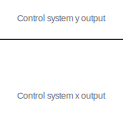
[diagram: root canvas - part 1/10, top right region]
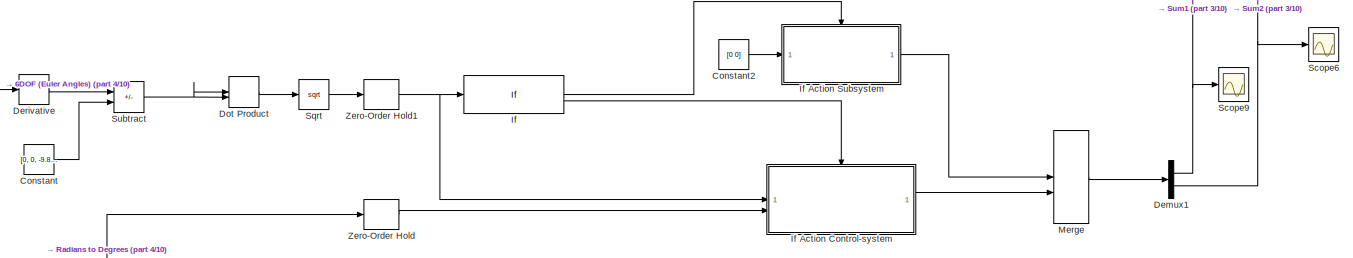
[diagram: root canvas - part 2/10, top center region]
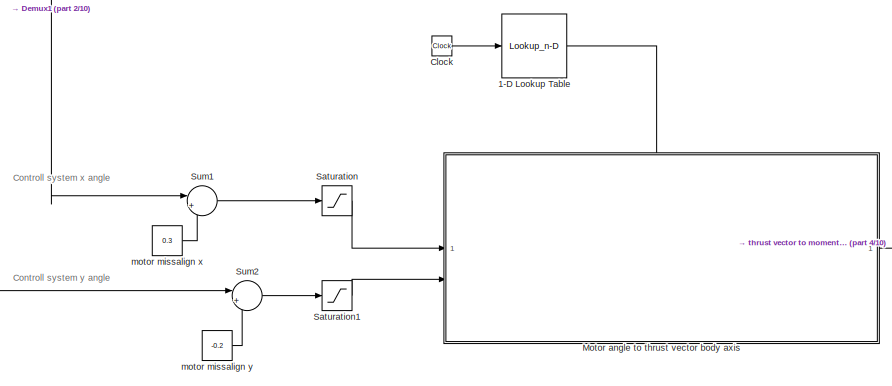
[diagram: root canvas - part 3/10, top left region]
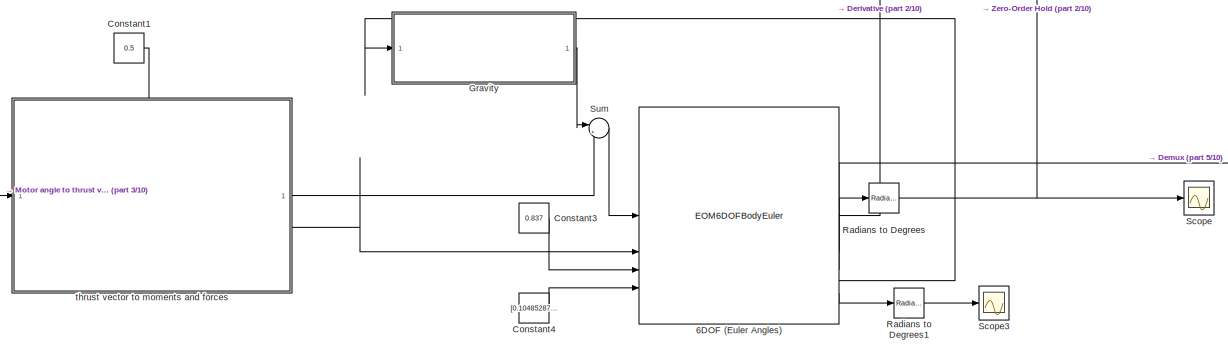
[diagram: root canvas - part 4/10, top center region]
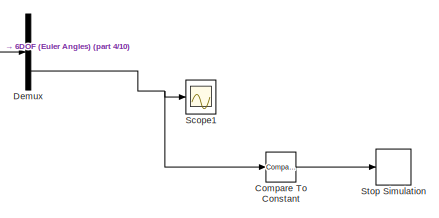
[diagram: root canvas - part 5/10, top center region]
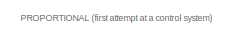
[diagram: root canvas - part 6/10, bottom center region]
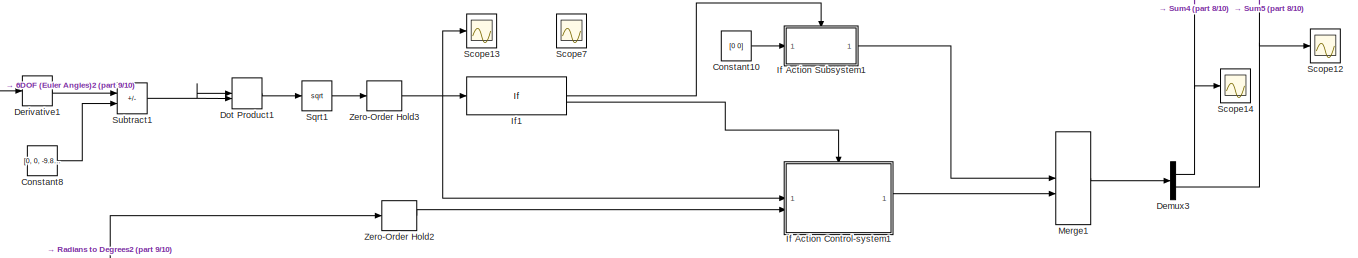
[diagram: root canvas - part 7/10, bottom right region]
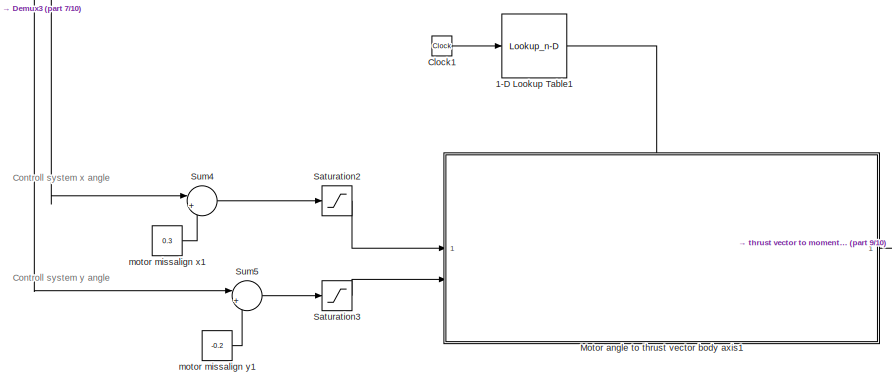
[diagram: root canvas - part 8/10, bottom left region]
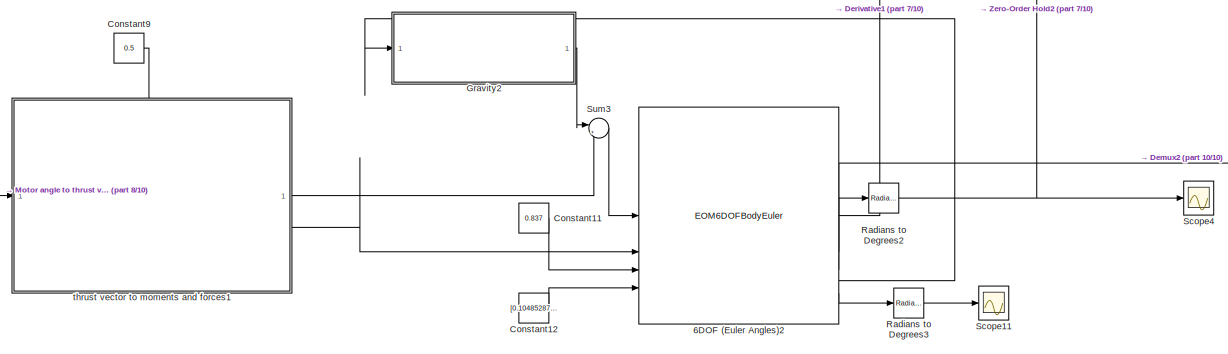
[diagram: root canvas - part 9/10, bottom center region]
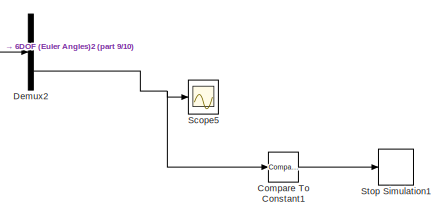
[diagram: root canvas - part 10/10, bottom right region]
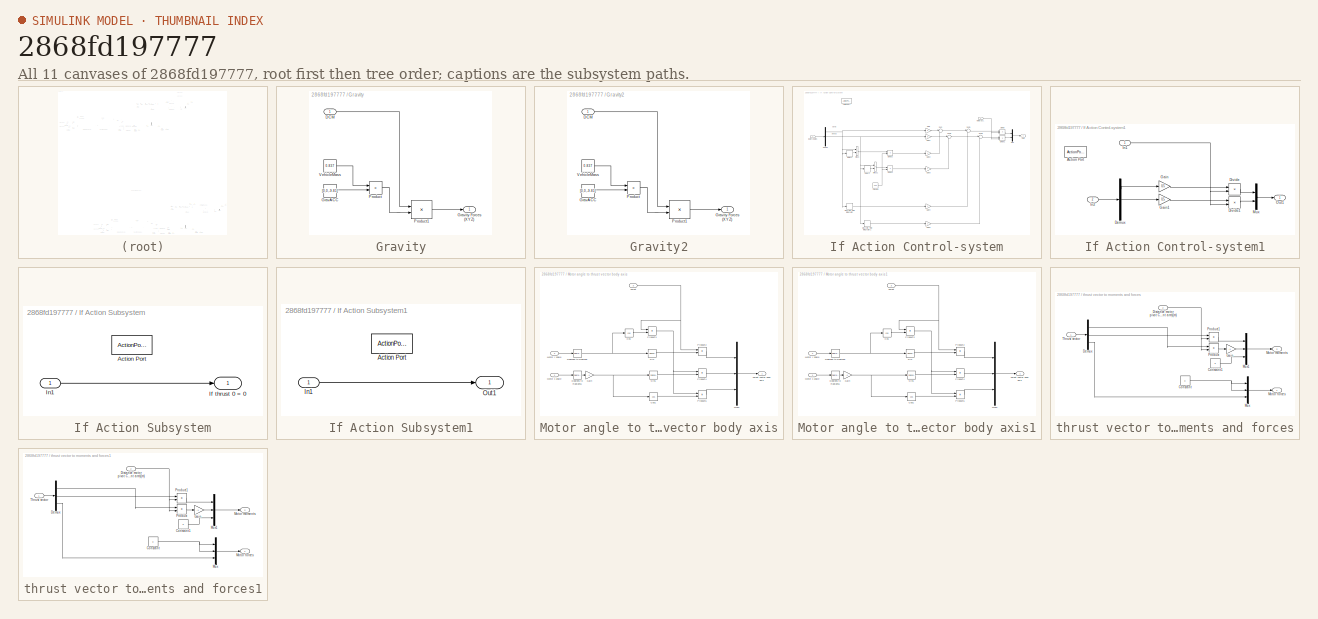
[diagram: thumbnail index - all 11 canvases of the model, root first then tree order]
MODEL slx_2868fd197777
KIND model
CONFIG AbsTol = auto
CONFIG EnableMultiTasking = off
CONFIG FixedStep = auto
CONFIG MaxStep = auto
CONFIG MinStep = auto
CONFIG RelTol = 1e-3
CONFIG SampleTimeConstraint = Unconstrained
CONFIG SolverName = VariableStepAuto
CONFIG StartTime = 0.0
CONFIG StopTime = 50
BLOCK [Lookup_n-D] 1-D Lookup Table
  BreakpointsForDimension1 = [0;0.014999999999999999;0.076999999999999999;0.20100000000000001;0.31;0.46400000000000002;0.57299999999999995;0.78900000000000003;1.0680000000000001;1.393;1.718;2.1659999999999999;2.677;3.3109999999999999;3.6829999999999998;3.7909999999999999;4.101;4.6580000000000004;5.1680000000000001;5.7249999999999996;6.1120000000000001;6.3289999999999997;6.4989999999999997;6.6849999999999996;6.7779999999999996...<+60ch>
  InputPortMap = u0
  InternalRulePriority = Speed
  NumberOfTableDimensions = 1
  RndMeth = Simplest
  Table = [0;28.219999999999999;26.082000000000001;24.934000000000001;22.806000000000001;20.183;17.885999999999999;16.074999999999999;13.946;12.630000000000001;11.154999999999999;9.8439999999999994;9.5150000000000006;9.1869999999999994;8.859;9.6790000000000003;9.6790000000000003;9.5150000000000006;9.0229999999999997;9.0229999999999997;8.5310000000000006;8.859;7.5460000000000003;5.742;4.9210000000000003;2.62...<+25ch>
BLOCK [Lookup_n-D] 1-D Lookup Table1
  BreakpointsForDimension1 = [0;0.014999999999999999;0.076999999999999999;0.20100000000000001;0.31;0.46400000000000002;0.57299999999999995;0.78900000000000003;1.0680000000000001;1.393;1.718;2.1659999999999999;2.677;3.3109999999999999;3.6829999999999998;3.7909999999999999;4.101;4.6580000000000004;5.1680000000000001;5.7249999999999996;6.1120000000000001;6.3289999999999997;6.4989999999999997;6.6849999999999996;6.7779999999999996...<+60ch>
  Commented = on
  InputPortMap = u0
  InternalRulePriority = Speed
  NumberOfTableDimensions = 1
  RndMeth = Simplest
  Table = [0;28.219999999999999;26.082000000000001;24.934000000000001;22.806000000000001;20.183;17.885999999999999;16.074999999999999;13.946;12.630000000000001;11.154999999999999;9.8439999999999994;9.5150000000000006;9.1869999999999994;8.859;9.6790000000000003;9.6790000000000003;9.5150000000000006;9.0229999999999997;9.0229999999999997;8.5310000000000006;8.859;7.5460000000000003;5.742;4.9210000000000003;2.62...<+25ch>
BLOCK [EOM6DOFBodyEuler] 6DOF (Euler Angles)
  mass_flag = on
  mtype = Custom Variable
  xme_0 = [0 0 0.1]
BLOCK [EOM6DOFBodyEuler] 6DOF (Euler Angles)2
  Commented = on
  mass_flag = on
  mtype = Custom Variable
  xme_0 = [0 0 0.1]
BLOCK [Clock] Clock
BLOCK [Clock] Clock1
  Commented = on
BLOCK [Reference] Compare To Constant  REF=simulink/Logic and Bit
Operations/Compare
To Constant
  SourceBlock = simulink/Logic and Bit\nOperations/Compare\nTo Constant
  SourceType = Compare To Constant
BLOCK [Reference] Compare To Constant1  REF=simulink/Logic and Bit
Operations/Compare
To Constant
  Commented = on
  SourceBlock = simulink/Logic and Bit\nOperations/Compare\nTo Constant
  SourceType = Compare To Constant
BLOCK [Constant] Constant
  Value = [0, 0, -9.81]
BLOCK [Constant] Constant1
  Value = 0.5
BLOCK [Constant] Constant10
  Commented = on
  Value = [0 0]
BLOCK [Constant] Constant11
  Commented = on
  Value = 0.837
BLOCK [Constant] Constant12
  Commented = on
  Value = [0.10485287325,0,0;0,0.10485287325,0;0,0,0.0004557465]
  VectorParams1D = off
BLOCK [Constant] Constant2
  Value = [0 0]
BLOCK [Constant] Constant3
  Value = 0.837
BLOCK [Constant] Constant4
  Value = [0.10485287325,0,0;0,0.10485287325,0;0,0,0.0004557465]
  VectorParams1D = off
BLOCK [Constant] Constant8
  Commented = on
  Value = [0, 0, -9.81]
BLOCK [Constant] Constant9
  Commented = on
  Value = 0.5
BLOCK [Demux] Demux
  Outputs = 3
BLOCK [Demux] Demux1
  Outputs = 2
BLOCK [Demux] Demux2
  Commented = on
  Outputs = 3
BLOCK [Demux] Demux3
  Commented = on
  Outputs = 2
BLOCK [Derivative] Derivative
BLOCK [Derivative] Derivative1
  Commented = on
BLOCK [DotProduct] Dot Product
  OutDataTypeStr = Inherit: Inherit via internal rule
BLOCK [DotProduct] Dot Product1
  Commented = on
  OutDataTypeStr = Inherit: Inherit via internal rule
BLOCK [SubSystem] Gravity
BLOCK [Inport] Gravity/DCM
BLOCK [Constant] Gravity/GravACC
  Value = [0,0,-9.81]
BLOCK [Outport] Gravity/Gravity Forces (XYZ)
BLOCK [Product] Gravity/Product
BLOCK [Product] Gravity/Product1
  Multiplication = Matrix(*)
BLOCK [Constant] Gravity/VehicleMass
  Value = 0.837
BLOCK [SubSystem] Gravity2
  Commented = on
BLOCK [Inport] Gravity2/DCM
BLOCK [Constant] Gravity2/GravACC
  Value = [0,0,-9.81]
BLOCK [Outport] Gravity2/Gravity Forces (XYZ)
BLOCK [Product] Gravity2/Product
BLOCK [Product] Gravity2/Product1
  Multiplication = Matrix(*)
BLOCK [Constant] Gravity2/VehicleMass
  Value = 0.837
BLOCK [If] If
  IfExpression = u1 == 0
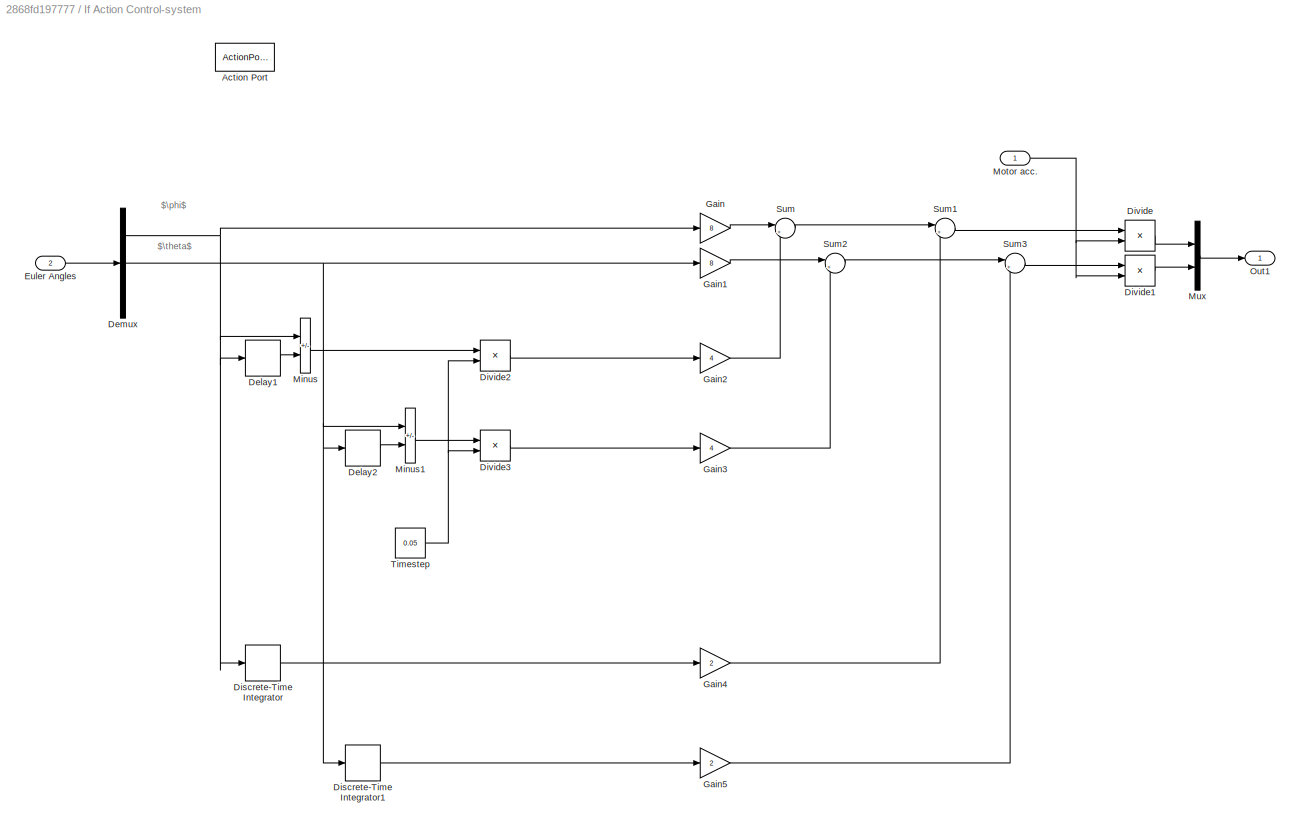
BLOCK [SubSystem] If Action Control-system
  TreatAsAtomicUnit = on
BLOCK [ActionPort] If Action Control-system/Action Port
  ActionPortLabel = else
BLOCK [Delay] If Action Control-system/Delay1
  DelayLength = 1
  InputPortMap = u0
  InputProcessing = Columns as channels (frame based)
BLOCK [Delay] If Action Control-system/Delay2
  DelayLength = 1
  InputPortMap = u0
  InputProcessing = Columns as channels (frame based)
BLOCK [Demux] If Action Control-system/Demux
  Outputs = 3
BLOCK [DiscreteIntegrator] If Action Control-system/Discrete-Time Integrator
  ICPrevOutput = DiscIntNeverNeededParam
  ICPrevScaledInput = DiscIntNeverNeededParam
  InitialConditionSetting = Auto
  SampleTime = -1
BLOCK [DiscreteIntegrator] If Action Control-system/Discrete-Time Integrator1
  ICPrevOutput = DiscIntNeverNeededParam
  ICPrevScaledInput = DiscIntNeverNeededParam
  InitialConditionSetting = Auto
  SampleTime = -1
BLOCK [Product] If Action Control-system/Divide
  Inputs = */
BLOCK [Product] If Action Control-system/Divide1
  Inputs = */
BLOCK [Product] If Action Control-system/Divide2
  Inputs = */
BLOCK [Product] If Action Control-system/Divide3
  Inputs = */
BLOCK [Inport] If Action Control-system/Euler Angles
  Port = 2
BLOCK [Gain] If Action Control-system/Gain
  Gain = 8
BLOCK [Gain] If Action Control-system/Gain1
  Gain = 8
BLOCK [Gain] If Action Control-system/Gain2
  Gain = 4
BLOCK [Gain] If Action Control-system/Gain3
  Gain = 4
BLOCK [Gain] If Action Control-system/Gain4
  Gain = 2
BLOCK [Gain] If Action Control-system/Gain5
  Gain = 2
BLOCK [Sum] If Action Control-system/Minus
  IconShape = rectangular
  Inputs = +-
BLOCK [Sum] If Action Control-system/Minus1
  IconShape = rectangular
  Inputs = +-
BLOCK [Inport] If Action Control-system/Motor acc.
BLOCK [Mux] If Action Control-system/Mux
  DisplayOption = bar
  Inputs = 2
BLOCK [Outport] If Action Control-system/Out1
BLOCK [Sum] If Action Control-system/Sum
  Inputs = |++
BLOCK [Sum] If Action Control-system/Sum1
  Inputs = |++
BLOCK [Sum] If Action Control-system/Sum2
  Inputs = |++
BLOCK [Sum] If Action Control-system/Sum3
  Inputs = |++
BLOCK [Constant] If Action Control-system/Timestep
  Value = 0.05
BLOCK [SubSystem] If Action Control-system1
  Commented = on
  TreatAsAtomicUnit = on
BLOCK [ActionPort] If Action Control-system1/Action Port
  ActionPortLabel = else
BLOCK [Demux] If Action Control-system1/Demux
  Outputs = 3
BLOCK [Product] If Action Control-system1/Divide
  Inputs = */
BLOCK [Product] If Action Control-system1/Divide1
  Inputs = */
BLOCK [Gain] If Action Control-system1/Gain
  Gain = 0.5
BLOCK [Gain] If Action Control-system1/Gain1
  Gain = 0.5
BLOCK [Inport] If Action Control-system1/In1
BLOCK [Inport] If Action Control-system1/In2
  Port = 2
BLOCK [Mux] If Action Control-system1/Mux
  DisplayOption = bar
  Inputs = 2
BLOCK [Outport] If Action Control-system1/Out1
BLOCK [SubSystem] If Action Subsystem
  TreatAsAtomicUnit = on
BLOCK [ActionPort] If Action Subsystem/Action Port
  ActionPortLabel = if(u1 == 0)
BLOCK [Outport] If Action Subsystem/If thrust 0 = 0
BLOCK [Inport] If Action Subsystem/In1
BLOCK [SubSystem] If Action Subsystem1
  Commented = on
  TreatAsAtomicUnit = on
BLOCK [ActionPort] If Action Subsystem1/Action Port
  ActionPortLabel = if(u1 == 0)
BLOCK [Inport] If Action Subsystem1/In1
BLOCK [Outport] If Action Subsystem1/Out1
BLOCK [If] If1
  Commented = on
  IfExpression = u1 == 0
BLOCK [Merge] Merge
  InitialOutput = [0  0]
BLOCK [Merge] Merge1
  Commented = on
  InitialOutput = [0  0]
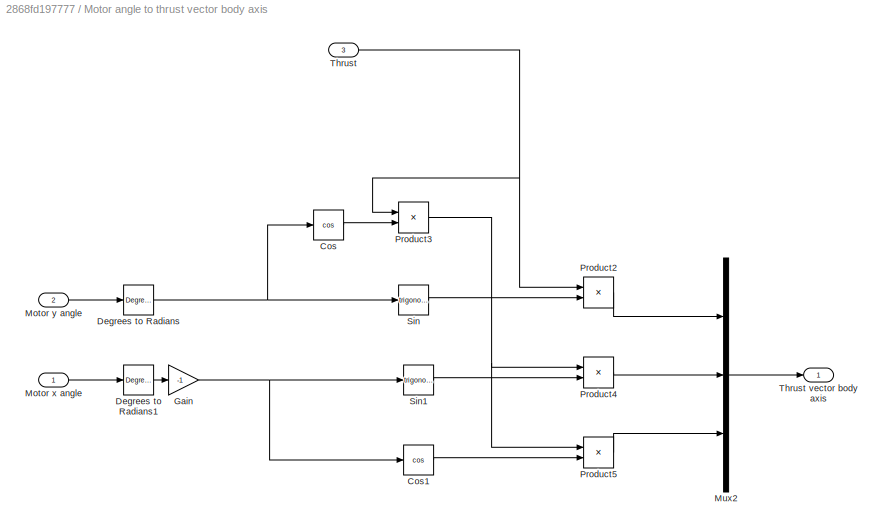
BLOCK [SubSystem] Motor angle to thrust vector body axis
  PortSchema = {"entries":[{"content":{"sides":[{"content":{"connectorIds":["In1","In2"]},"type":"ConnectorPlacement.EquallySpacedRectSide","uuid":"4b503973-8707-4c0f-888a-19da73d3d266"},{"content":{"connectorIds":["Out1"],"side":"RIGHT"},"type":"ConnectorPlacement.EquallySpacedRectSide","uuid":"0e35582e-8d4d-4e1d-9caa-676f92065a2c"},{"content":{"connectorIds":["In3"],"side":"TOP"},"type":"ConnectorPlacement.Equ...<+251ch>
BLOCK [Trigonometry] Motor angle to thrust vector body axis/Cos
  Operator = cos
BLOCK [Trigonometry] Motor angle to thrust vector body axis/Cos1
  Operator = cos
BLOCK [Reference] Motor angle to thrust vector body axis/Degrees to Radians  REF=simulink_extras/Transformations/Degrees to
Radians
  SourceBlock = simulink_extras/Transformations/Degrees to\nRadians
  SourceType = DegreesToRadians
BLOCK [Reference] Motor angle to thrust vector body axis/Degrees to Radians1  REF=simulink_extras/Transformations/Degrees to
Radians
  SourceBlock = simulink_extras/Transformations/Degrees to\nRadians
  SourceType = DegreesToRadians
BLOCK [Gain] Motor angle to thrust vector body axis/Gain
  Gain = -1
BLOCK [Inport] Motor angle to thrust vector body axis/Motor x angle 
BLOCK [Inport] Motor angle to thrust vector body axis/Motor y angle
  Port = 2
BLOCK [Mux] Motor angle to thrust vector body axis/Mux2
  DisplayOption = bar
  Inputs = 3
BLOCK [Product] Motor angle to thrust vector body axis/Product2
BLOCK [Product] Motor angle to thrust vector body axis/Product3
BLOCK [Product] Motor angle to thrust vector body axis/Product4
BLOCK [Product] Motor angle to thrust vector body axis/Product5
BLOCK [Trigonometry] Motor angle to thrust vector body axis/Sin
BLOCK [Trigonometry] Motor angle to thrust vector body axis/Sin1
BLOCK [Inport] Motor angle to thrust vector body axis/Thrust
  Port = 3
BLOCK [Outport] Motor angle to thrust vector body axis/Thrust vector body axis
BLOCK [SubSystem] Motor angle to thrust vector body axis1
  Commented = on
  PortSchema = {"entries":[{"content":{"sides":[{"content":{"connectorIds":["In1","In2"]},"type":"ConnectorPlacement.EquallySpacedRectSide","uuid":"4b503973-8707-4c0f-888a-19da73d3d266"},{"content":{"connectorIds":["Out1"],"side":"RIGHT"},"type":"ConnectorPlacement.EquallySpacedRectSide","uuid":"0e35582e-8d4d-4e1d-9caa-676f92065a2c"},{"content":{"connectorIds":["In3"],"side":"TOP"},"type":"ConnectorPlacement.Equ...<+251ch>
BLOCK [Trigonometry] Motor angle to thrust vector body axis1/Cos
  Operator = cos
BLOCK [Trigonometry] Motor angle to thrust vector body axis1/Cos1
  Operator = cos
BLOCK [Reference] Motor angle to thrust vector body axis1/Degrees to Radians  REF=simulink_extras/Transformations/Degrees to
Radians
  SourceBlock = simulink_extras/Transformations/Degrees to\nRadians
  SourceType = DegreesToRadians
BLOCK [Reference] Motor angle to thrust vector body axis1/Degrees to Radians1  REF=simulink_extras/Transformations/Degrees to
Radians
  SourceBlock = simulink_extras/Transformations/Degrees to\nRadians
  SourceType = DegreesToRadians
BLOCK [Gain] Motor angle to thrust vector body axis1/Gain
  Gain = -1
BLOCK [Inport] Motor angle to thrust vector body axis1/Motor x angle 
BLOCK [Inport] Motor angle to thrust vector body axis1/Motor y angle
  Port = 2
BLOCK [Mux] Motor angle to thrust vector body axis1/Mux2
  DisplayOption = bar
  Inputs = 3
BLOCK [Product] Motor angle to thrust vector body axis1/Product2
BLOCK [Product] Motor angle to thrust vector body axis1/Product3
BLOCK [Product] Motor angle to thrust vector body axis1/Product4
BLOCK [Product] Motor angle to thrust vector body axis1/Product5
BLOCK [Trigonometry] Motor angle to thrust vector body axis1/Sin
BLOCK [Trigonometry] Motor angle to thrust vector body axis1/Sin1
BLOCK [Inport] Motor angle to thrust vector body axis1/Thrust
  Port = 3
BLOCK [Outport] Motor angle to thrust vector body axis1/Thrust vector body axis
BLOCK [Reference] Radians to Degrees  REF=simulink_extras/Transformations/Radians
to Degrees
  SourceBlock = simulink_extras/Transformations/Radians\nto Degrees
  SourceType = RadiansToDegrees
BLOCK [Reference] Radians to Degrees1  REF=simulink_extras/Transformations/Radians
to Degrees
  SourceBlock = simulink_extras/Transformations/Radians\nto Degrees
  SourceType = RadiansToDegrees
BLOCK [Reference] Radians to Degrees2  REF=simulink_extras/Transformations/Radians
to Degrees
  Commented = on
  SourceBlock = simulink_extras/Transformations/Radians\nto Degrees
  SourceType = RadiansToDegrees
BLOCK [Reference] Radians to Degrees3  REF=simulink_extras/Transformations/Radians
to Degrees
  Commented = on
  SourceBlock = simulink_extras/Transformations/Radians\nto Degrees
  SourceType = RadiansToDegrees
BLOCK [Saturate] Saturation
  LowerLimit = -5
  UpperLimit = 5
BLOCK [Saturate] Saturation1
  LowerLimit = -5
  UpperLimit = 5
BLOCK [Saturate] Saturation2
  Commented = on
  LowerLimit = -5
  UpperLimit = 5
BLOCK [Saturate] Saturation3
  Commented = on
  LowerLimit = -5
  UpperLimit = 5
BLOCK [Scope] Scope
  ActiveDisplayYMaximum = 1.3166208055928255
  ActiveDisplayYMinimum = -0.95333238471371728
  Floating = off
  GraphicalSettings = {"AxesScalingProperties":{"AlignXAxis":"Center","AlignYAxis":"Center","AutoScaleXAxisLimits":false,"AxesScaling":"Manual","AxesScalingNumUpdates":10,"ExpandOnly":true,"ScaleAxesLimitsAtStop":false,"XAxisDataRange":100,"YAxisDataRange":80},"Cursors":{"CursorChannels":["auto","auto"],"Enabled":true,"Horizontal":true,"LinkToWaveform":true,"LockSpacing":false,"ShowMeasurement":true,"ShowPanel":false,"...<+2564ch>
  MultipleDisplayCache = [{"MaxYLimMag":1.3166208055928255,"MaxYLimReal":1.3166208055928255,"MinYLimMag":0,"MinYLimReal":-0.95333238471371728,"PlotAsMagnitudePhase":false,"ShowGrid":true,"ShowLegend":false,"Title":"%<SignalLabel>","YLabel":""}]
  NumInputPorts = 1
  ScopeFrameLocation = window
  WasSavedAsWebScope = on
  WindowPosition = [228.000000,36.000000,1006.000000,843.000000,]
BLOCK [Scope] Scope1
  ActiveDisplayYMaximum = 177.26177365271346
  ActiveDisplayYMinimum = -25.220477284135235
  DataLoggingVariableName = ScopeData1
  Floating = off
  GraphicalSettings = {"Style":{"BackgroundColor":[0.12941176470588237,0.12941176470588237,0.12941176470588237],"AxesColor":[0.07058823529411765,0.07058823529411765,0.07058823529411765],"LabelsColor":[0.8509803921568627,0.8509803921568627,0.8509803921568627],"PreserveColors":false,"Visible":[true,true,true,true,true,true,true],"LineStyle":["-","-","-","-","-","-","-"],"LineWidth":[1.5,1.5,1.5,1.5,1.5,1.5,1.5],"BarWidth...<+2895ch>
  MultipleDisplayCache = [{"MaxYLimMag":182.2340258431702,"MaxYLimReal":177.26177365271346,"MinYLimMag":0,"MinYLimReal":-25.220477284135235,"PlotAsMagnitudePhase":false,"ShowGrid":true,"ShowLegend":false,"Title":"%<SignalLabel>","YLabel":""}]
  NumInputPorts = 1
  ScopeFrameLocation = window
  Visible = on
  WasSavedAsWebScope = on
  WindowPosition = [341.000000,40.000000,780.000000,835.000000,]
BLOCK [Scope] Scope11
  ActiveDisplayYMaximum = 8.6437171838582287
  ActiveDisplayYMinimum = -11.792882787629186
  Commented = on
  DataLoggingVariableName = ScopeData4
  Floating = off
  GraphicalSettings = {"Style":{"BackgroundColor":[0.12941176470588237,0.12941176470588237,0.12941176470588237],"AxesColor":[0.07058823529411765,0.07058823529411765,0.07058823529411765],"LabelsColor":[0.8509803921568627,0.8509803921568627,0.8509803921568627],"PreserveColors":false,"Visible":[true,true,true],"LineStyle":["-","-","-"],"LineWidth":[1.5,1.5,1.5],"BarWidth":[0.9,0.9,0.9],"LineColor":["auto","auto","auto"],"...<+2655ch>
  MultipleDisplayCache = [{"MaxYLimMag":5.8138597883007268,"MaxYLimReal":8.6437171838582287,"MinYLimMag":0,"MinYLimReal":-11.792882787629186,"PlotAsMagnitudePhase":false,"ShowGrid":true,"ShowLegend":false,"Title":"%<SignalLabel>","YLabel":""}]
  NumInputPorts = 1
  ScopeFrameLocation = window
  WasSavedAsWebScope = on
  WindowPosition = [0.000000,36.000000,1463.000000,843.000000,]
BLOCK [Scope] Scope12
  ActiveDisplayYMaximum = 12.983065605518574
  ActiveDisplayYMinimum = -19.172442371926476
  Commented = on
  ContainerLayout = {"WindowBounds":[91.428571428571331,73.14285714285711,1280,768]}
  DataLoggingVariableName = ScopeData5
  Floating = off
  GraphicalSettings = {"Style":{"BackgroundColor":[0.12941176470588237,0.12941176470588237,0.12941176470588237],"AxesColor":[0.07058823529411765,0.07058823529411765,0.07058823529411765],"LabelsColor":[0.8509803921568627,0.8509803921568627,0.8509803921568627],"PreserveColors":false,"Visible":[true,true,true,true,true,true,true],"LineStyle":["-","-","-","-","-","-","-"],"LineWidth":[1.5,1.5,1.5,1.5,1.5,1.5,1.5],"BarWidth...<+2874ch>
  MultipleDisplayCache = [{"MaxYLimMag":19.172442371926476,"MaxYLimReal":12.983065605518574,"MinYLimMag":0,"MinYLimReal":-19.172442371926476,"PlotAsMagnitudePhase":false,"ShowGrid":true,"ShowLegend":false,"Title":"%<SignalLabel>","YLabel":""}]
  NumInputPorts = 1
  ScopeFrameLocation = container
  WasSavedAsWebScope = on
  WindowPosition = [91.000000,73.000000,1280.000000,768.000000,]
BLOCK [Scope] Scope13
  ActiveDisplayYMaximum = 23.965563237830779
  ActiveDisplayYMinimum = -5.6698001376617562
  Commented = on
  DataLoggingVariableName = ScopeData6
  Floating = off
  GraphicalSettings = {"Style":{"BackgroundColor":[0.12941176470588237,0.12941176470588237,0.12941176470588237],"AxesColor":[0.07058823529411765,0.07058823529411765,0.07058823529411765],"LabelsColor":[0.8509803921568627,0.8509803921568627,0.8509803921568627],"PreserveColors":false,"Visible":[true],"LineStyle":["-"],"LineWidth":[1.5],"BarWidth":[0.9],"LineColor":["auto"],"LineFaceAlpha":[1],"LineEdgeAlpha":[1],"Marker":...<+2316ch>
  MultipleDisplayCache = [{"MaxYLimMag":36.83043138480658,"MaxYLimReal":23.965563237830779,"MinYLimMag":0,"MinYLimReal":-5.6698001376617562,"PlotAsMagnitudePhase":false,"ShowGrid":true,"ShowLegend":false,"Title":"%<SignalLabel>","YLabel":""}]
  NumInputPorts = 1
  ScopeFrameLocation = window
  WasSavedAsWebScope = on
  WindowPosition = [764.000000,130.000000,560.000000,420.000000,]
BLOCK [Scope] Scope14
  ActiveDisplayYMaximum = 0.23196190946596834
  ActiveDisplayYMinimum = -0.98756090268573959
  Commented = on
  DataLoggingVariableName = ScopeData8
  Floating = off
  GraphicalSettings = {"AxesScalingProperties":{"AlignXAxis":"Center","AlignYAxis":"Center","AutoScaleXAxisLimits":false,"AxesScaling":"Manual","AxesScalingNumUpdates":10,"ExpandOnly":true,"ScaleAxesLimitsAtStop":false,"XAxisDataRange":100,"YAxisDataRange":80},"Cursors":{"CursorChannels":["auto","auto"],"Enabled":true,"Horizontal":true,"LinkToWaveform":true,"LockSpacing":false,"ShowMeasurement":true,"ShowPanel":false,"...<+2308ch>
  MultipleDisplayCache = [{"MaxYLimMag":0.98756090268573959,"MaxYLimReal":0.23196190946596834,"MinYLimMag":0,"MinYLimReal":-0.98756090268573959,"PlotAsMagnitudePhase":false,"ShowGrid":true,"ShowLegend":false,"Title":"%<SignalLabel>","YLabel":""}]
  NumInputPorts = 1
  ScopeFrameLocation = window
  WasSavedAsWebScope = on
  WindowPosition = [1.000000,49.000000,1463.000000,843.000000,]
BLOCK [Scope] Scope3
  ActiveDisplayYMaximum = 8.6437171838582287
  ActiveDisplayYMinimum = -11.792882787629186
  DataLoggingVariableName = ScopeData3
  Floating = off
  GraphicalSettings = {"Style":{"BackgroundColor":[0.12941176470588237,0.12941176470588237,0.12941176470588237],"AxesColor":[0.07058823529411765,0.07058823529411765,0.07058823529411765],"LabelsColor":[0.8509803921568627,0.8509803921568627,0.8509803921568627],"PreserveColors":false,"Visible":[true,true,true],"LineStyle":["-","-","-"],"LineWidth":[1.5,1.5,1.5],"BarWidth":[0.9,0.9,0.9],"LineColor":["auto","auto","auto"],"...<+2655ch>
  MultipleDisplayCache = [{"MaxYLimMag":5.8138597883007268,"MaxYLimReal":8.6437171838582287,"MinYLimMag":0,"MinYLimReal":-11.792882787629186,"PlotAsMagnitudePhase":false,"ShowGrid":true,"ShowLegend":false,"Title":"%<SignalLabel>","YLabel":""}]
  NumInputPorts = 1
  ScopeFrameLocation = window
  WasSavedAsWebScope = on
  WindowPosition = [0.000000,36.000000,1463.000000,843.000000,]
BLOCK [Scope] Scope4
  ActiveDisplayYMaximum = 21.82157133014633
  ActiveDisplayYMinimum = -31.544686076176852
  Commented = on
  DataLoggingVariableName = ScopeData12
  Floating = off
  GraphicalSettings = {"Style":{"BackgroundColor":[0.12941176470588237,0.12941176470588237,0.12941176470588237],"AxesColor":[0.07058823529411765,0.07058823529411765,0.07058823529411765],"LabelsColor":[0.8509803921568627,0.8509803921568627,0.8509803921568627],"PreserveColors":false,"Visible":[true,true,true],"LineStyle":["-","-","-"],"LineWidth":[1.5,1.5,1.5],"BarWidth":[0.9,0.9,0.9],"LineColor":["auto","auto","auto"],"...<+2984ch>
  MultipleDisplayCache = [{"MaxYLimMag":31.544686076176852,"MaxYLimReal":21.82157133014633,"MinYLimMag":0,"MinYLimReal":-31.544686076176852,"PlotAsMagnitudePhase":false,"ShowGrid":true,"ShowLegend":false,"Title":"%<SignalLabel>","YLabel":""}]
  NumInputPorts = 1
  ScopeFrameLocation = window
  Visible = on
  WasSavedAsWebScope = on
  WindowPosition = [297.000000,39.000000,807.000000,843.000000,]
BLOCK [Scope] Scope5
  ActiveDisplayYMaximum = 156.85705293055312
  ActiveDisplayYMinimum = -17.3175558325307
  Commented = on
  DataLoggingVariableName = ScopeData13
  Floating = off
  GraphicalSettings = {"AxesScalingProperties":{"AlignXAxis":"Center","AlignYAxis":"Center","AutoScaleXAxisLimits":false,"AxesScaling":"Manual","AxesScalingNumUpdates":10,"ExpandOnly":true,"ScaleAxesLimitsAtStop":false,"XAxisDataRange":100,"YAxisDataRange":80},"Cursors":{"CursorChannels":["auto","auto"],"Enabled":false,"Horizontal":true,"LinkToWaveform":true,"LockSpacing":false,"ShowMeasurement":true,"ShowPanel":false,...<+2649ch>
  MultipleDisplayCache = [{"MaxYLimMag":156.85705293055312,"MaxYLimReal":156.85705293055312,"MinYLimMag":0,"MinYLimReal":-17.3175558325307,"PlotAsMagnitudePhase":false,"ShowGrid":true,"ShowLegend":false,"Title":"%<SignalLabel>","YLabel":""}]
  NumInputPorts = 1
  ScopeFrameLocation = window
  Visible = on
  WasSavedAsWebScope = on
  WindowPosition = [367.000000,19.000000,818.000000,843.000000,]
BLOCK [Scope] Scope6
  ActiveDisplayYMaximum = 12.983065605518574
  ActiveDisplayYMinimum = -19.172442371926476
  ContainerLayout = {"WindowBounds":[91.428571428571331,73.14285714285711,1280,768]}
  DataLoggingVariableName = ScopeData7
  Floating = off
  GraphicalSettings = {"Style":{"BackgroundColor":[0.12941176470588237,0.12941176470588237,0.12941176470588237],"AxesColor":[0.07058823529411765,0.07058823529411765,0.07058823529411765],"LabelsColor":[0.8509803921568627,0.8509803921568627,0.8509803921568627],"PreserveColors":false,"Visible":[true,true,true,true,true,true,true],"LineStyle":["-","-","-","-","-","-","-"],"LineWidth":[1.5,1.5,1.5,1.5,1.5,1.5,1.5],"BarWidth...<+2874ch>
  MultipleDisplayCache = [{"MaxYLimMag":19.172442371926476,"MaxYLimReal":12.983065605518574,"MinYLimMag":0,"MinYLimReal":-19.172442371926476,"PlotAsMagnitudePhase":false,"ShowGrid":true,"ShowLegend":false,"Title":"%<SignalLabel>","YLabel":""}]
  NumInputPorts = 1
  ScopeFrameLocation = container
  Visible = on
  WasSavedAsWebScope = on
  WindowPosition = [91.000000,73.000000,1280.000000,768.000000,]
BLOCK [Scope] Scope7
  ActiveDisplayYMaximum = 9.2049276824252656E+12
  ActiveDisplayYMinimum = -1.2750777308455941E+13
  Commented = on
  DataLoggingVariableName = ScopeData14
  Floating = off
  GraphicalSettings = {"AxesScalingProperties":{"AlignXAxis":"Center","AlignYAxis":"Center","AutoScaleXAxisLimits":false,"AxesScaling":"Manual","AxesScalingNumUpdates":10,"ExpandOnly":true,"ScaleAxesLimitsAtStop":false,"XAxisDataRange":100,"YAxisDataRange":80},"Cursors":{"CursorChannels":["auto","auto"],"Enabled":true,"Horizontal":true,"LinkToWaveform":true,"LockSpacing":false,"ShowMeasurement":true,"ShowPanel":false,"...<+2343ch>
  MultipleDisplayCache = [{"MaxYLimMag":8.0680672488989541E+12,"MaxYLimReal":9.2049276824252656E+12,"MinYLimMag":0,"MinYLimReal":-1.2750777308455941E+13,"PlotAsMagnitudePhase":false,"ShowGrid":true,"ShowLegend":false,"Title":"%<SignalLabel>","YLabel":""}]
  NumInputPorts = 1
  ScopeFrameLocation = window
  WasSavedAsWebScope = on
  WindowPosition = [764.000000,130.000000,560.000000,420.000000,]
BLOCK [Scope] Scope9
  ActiveDisplayYMaximum = 0.23196190946596834
  ActiveDisplayYMinimum = -0.98756090268573959
  DataLoggingVariableName = ScopeData10
  Floating = off
  GraphicalSettings = {"AxesScalingProperties":{"AlignXAxis":"Center","AlignYAxis":"Center","AutoScaleXAxisLimits":false,"AxesScaling":"Manual","AxesScalingNumUpdates":10,"ExpandOnly":true,"ScaleAxesLimitsAtStop":false,"XAxisDataRange":100,"YAxisDataRange":80},"Cursors":{"CursorChannels":["auto","auto"],"Enabled":true,"Horizontal":true,"LinkToWaveform":true,"LockSpacing":false,"ShowMeasurement":true,"ShowPanel":false,"...<+2308ch>
  MultipleDisplayCache = [{"MaxYLimMag":0.98756090268573959,"MaxYLimReal":0.23196190946596834,"MinYLimMag":0,"MinYLimReal":-0.98756090268573959,"PlotAsMagnitudePhase":false,"ShowGrid":true,"ShowLegend":false,"Title":"%<SignalLabel>","YLabel":""}]
  NumInputPorts = 1
  ScopeFrameLocation = window
  WasSavedAsWebScope = on
  WindowPosition = [1.000000,49.000000,1463.000000,843.000000,]
BLOCK [Sqrt] Sqrt
BLOCK [Sqrt] Sqrt1
  Commented = on
BLOCK [Stop] Stop Simulation
BLOCK [Stop] Stop Simulation1
  Commented = on
BLOCK [Sum] Subtract
  IconShape = rectangular
  Inputs = +-
BLOCK [Sum] Subtract1
  Commented = on
  IconShape = rectangular
  Inputs = +-
BLOCK [Sum] Sum
  Inputs = |++
BLOCK [Sum] Sum1
  Inputs = |++
BLOCK [Sum] Sum2
  Inputs = |++
BLOCK [Sum] Sum3
  Commented = on
  Inputs = |++
BLOCK [Sum] Sum4
  Commented = on
  Inputs = |++
BLOCK [Sum] Sum5
  Commented = on
  Inputs = |++
BLOCK [ZeroOrderHold] Zero-Order Hold
  SampleTime = 0.05
BLOCK [ZeroOrderHold] Zero-Order Hold1
  SampleTime = 0.05
BLOCK [ZeroOrderHold] Zero-Order Hold2
  Commented = on
  SampleTime = 0.05
BLOCK [ZeroOrderHold] Zero-Order Hold3
  Commented = on
  SampleTime = 0.05
BLOCK [Constant] motor missalign x
  Value = 0.3
BLOCK [Constant] motor missalign x1
  Commented = on
  Value = 0.3
BLOCK [Constant] motor missalign y
  Value = -0.2
BLOCK [Constant] motor missalign y1
  Commented = on
  Value = -0.2
BLOCK [SubSystem] thrust vector to moments and forces
  PortSchema = {"entries":[{"content":{"sides":[{"content":{"connectorIds":["In1"]},"type":"ConnectorPlacement.EquallySpacedRectSide","uuid":"ecc540b9-c797-4f3d-bcd8-620841eda8ea"},{"content":{"connectorIds":["Out1","Out2"],"side":"RIGHT"},"type":"ConnectorPlacement.EquallySpacedRectSide","uuid":"733057df-4a99-4d39-a25b-7c2059c7708c"},{"content":{"connectorIds":["In2"],"side":"TOP"},"type":"ConnectorPlacement.Eq...<+252ch>
BLOCK [Constant] thrust vector to moments and forces/Constant
  Value = 0
BLOCK [Constant] thrust vector to moments and forces/Constant1
  Value = 0
BLOCK [Demux] thrust vector to moments and forces/Demux
  Outputs = 3
BLOCK [Inport] thrust vector to moments and forces/Distance motor pivot COG(moment arm)(m)
  Port = 2
BLOCK [Gain] thrust vector to moments and forces/Gain
  Gain = -1
BLOCK [Outport] thrust vector to moments and forces/Motor forces
BLOCK [Outport] thrust vector to moments and forces/Motor moments
  Port = 2
BLOCK [Mux] thrust vector to moments and forces/Mux
  DisplayOption = bar
  Inputs = 3
BLOCK [Mux] thrust vector to moments and forces/Mux1
  DisplayOption = bar
  Inputs = 3
BLOCK [Product] thrust vector to moments and forces/Product
BLOCK [Product] thrust vector to moments and forces/Product1
BLOCK [Inport] thrust vector to moments and forces/Thrust vector
BLOCK [SubSystem] thrust vector to moments and forces1
  Commented = on
  PortSchema = {"entries":[{"content":{"sides":[{"content":{"connectorIds":["In1"]},"type":"ConnectorPlacement.EquallySpacedRectSide","uuid":"ecc540b9-c797-4f3d-bcd8-620841eda8ea"},{"content":{"connectorIds":["Out1","Out2"],"side":"RIGHT"},"type":"ConnectorPlacement.EquallySpacedRectSide","uuid":"733057df-4a99-4d39-a25b-7c2059c7708c"},{"content":{"connectorIds":["In2"],"side":"TOP"},"type":"ConnectorPlacement.Eq...<+252ch>
BLOCK [Constant] thrust vector to moments and forces1/Constant
  Value = 0
BLOCK [Constant] thrust vector to moments and forces1/Constant1
  Value = 0
BLOCK [Demux] thrust vector to moments and forces1/Demux
  Outputs = 3
BLOCK [Inport] thrust vector to moments and forces1/Distance motor pivot COG(moment arm)(m)
  Port = 2
BLOCK [Gain] thrust vector to moments and forces1/Gain
  Gain = -1
BLOCK [Outport] thrust vector to moments and forces1/Motor forces
BLOCK [Outport] thrust vector to moments and forces1/Motor moments
  Port = 2
BLOCK [Mux] thrust vector to moments and forces1/Mux
  DisplayOption = bar
  Inputs = 3
BLOCK [Mux] thrust vector to moments and forces1/Mux1
  DisplayOption = bar
  Inputs = 3
BLOCK [Product] thrust vector to moments and forces1/Product
BLOCK [Product] thrust vector to moments and forces1/Product1
BLOCK [Inport] thrust vector to moments and forces1/Thrust vector
ANNOTATION (root): PROPORTIONAL (first attempt at a control system)
ANNOTATION (root): Control system x output
ANNOTATION (root): Control system y output
ANNOTATION (root): Controll system x angle
ANNOTATION (root): Controll system y angle
ANNOTATION If Action Control-system: $\phi$
ANNOTATION If Action Control-system: $\theta$
LINE 1-D Lookup Table1:1 -> Motor angle to thrust vector body axis1:3
LINE 1-D Lookup Table:1 -> Motor angle to thrust vector body axis:3
LINE 6DOF (Euler Angles)2:1 -> Derivative1:1
LINE 6DOF (Euler Angles)2:2 -> Demux2:1
LINE 6DOF (Euler Angles)2:3 -> Radians to Degrees2:1
LINE 6DOF (Euler Angles)2:4 -> Gravity2:1
LINE 6DOF (Euler Angles)2:6 -> Radians to Degrees3:1
LINE 6DOF (Euler Angles):1 -> Derivative:1
LINE 6DOF (Euler Angles):2 -> Demux:1
LINE 6DOF (Euler Angles):3 -> Radians to Degrees:1
LINE 6DOF (Euler Angles):4 -> Gravity:1
LINE 6DOF (Euler Angles):6 -> Radians to Degrees1:1
LINE Clock1:1 -> 1-D Lookup Table1:1
LINE Clock:1 -> 1-D Lookup Table:1
LINE Compare To Constant1:1 -> Stop Simulation1:1
LINE Compare To Constant:1 -> Stop Simulation:1
LINE Constant10:1 -> If Action Subsystem1:1
LINE Constant11:1 -> 6DOF (Euler Angles)2:3
LINE Constant12:1 -> 6DOF (Euler Angles)2:5
LINE Constant1:1 -> thrust vector to moments and forces:2
LINE Constant2:1 -> If Action Subsystem:1
LINE Constant3:1 -> 6DOF (Euler Angles):3
LINE Constant4:1 -> 6DOF (Euler Angles):5
LINE Constant8:1 -> Subtract1:2
LINE Constant9:1 -> thrust vector to moments and forces1:2
LINE Constant:1 -> Subtract:2
NET Demux1:1 -> Scope9:1, Sum1:1
NET Demux1:2 -> Scope6:1, Sum2:1
NET Demux2:3 -> Compare To Constant1:1, Scope5:1
NET Demux3:1 -> Scope14:1, Sum4:1
NET Demux3:2 -> Scope12:1, Sum5:1
NET Demux:3 -> Compare To Constant:1, Scope1:1
LINE Derivative1:1 -> Subtract1:1
LINE Derivative:1 -> Subtract:1
LINE Dot Product1:1 -> Sqrt1:1
LINE Dot Product:1 -> Sqrt:1
LINE Gravity/DCM:1 -> Gravity/Product1:1
LINE Gravity/GravACC:1 -> Gravity/Product:2
LINE Gravity/Product1:1 -> Gravity/Gravity Forces (XYZ):1
LINE Gravity/Product:1 -> Gravity/Product1:2
LINE Gravity/VehicleMass:1 -> Gravity/Product:1
LINE Gravity2/DCM:1 -> Gravity2/Product1:1
LINE Gravity2/GravACC:1 -> Gravity2/Product:2
LINE Gravity2/Product1:1 -> Gravity2/Gravity Forces (XYZ):1
LINE Gravity2/Product:1 -> Gravity2/Product1:2
LINE Gravity2/VehicleMass:1 -> Gravity2/Product:1
LINE Gravity2:1 -> Sum3:1
LINE Gravity:1 -> Sum:1
LINE If Action Control-system/Delay1:1 -> If Action Control-system/Minus:2
LINE If Action Control-system/Delay2:1 -> If Action Control-system/Minus1:2
NET If Action Control-system/Demux:1 -> If Action Control-system/Delay1:1, If Action Control-system/Discrete-Time Integrator:1, If Action Control-system/Gain:1, If Action Control-system/Minus:1
NET If Action Control-system/Demux:2 -> If Action Control-system/Delay2:1, If Action Control-system/Discrete-Time Integrator1:1, If Action Control-system/Gain1:1, If Action Control-system/Minus1:1
LINE If Action Control-system/Discrete-Time Integrator1:1 -> If Action Control-system/Gain5:1
LINE If Action Control-system/Discrete-Time Integrator:1 -> If Action Control-system/Gain4:1
LINE If Action Control-system/Divide1:1 -> If Action Control-system/Mux:2
LINE If Action Control-system/Divide2:1 -> If Action Control-system/Gain2:1
LINE If Action Control-system/Divide3:1 -> If Action Control-system/Gain3:1
LINE If Action Control-system/Divide:1 -> If Action Control-system/Mux:1
LINE If Action Control-system/Euler Angles:1 -> If Action Control-system/Demux:1
LINE If Action Control-system/Gain1:1 -> If Action Control-system/Sum2:1
LINE If Action Control-system/Gain2:1 -> If Action Control-system/Sum:2
LINE If Action Control-system/Gain3:1 -> If Action Control-system/Sum2:2
LINE If Action Control-system/Gain4:1 -> If Action Control-system/Sum1:2
LINE If Action Control-system/Gain5:1 -> If Action Control-system/Sum3:2
LINE If Action Control-system/Gain:1 -> If Action Control-system/Sum:1
LINE If Action Control-system/Minus1:1 -> If Action Control-system/Divide3:1
LINE If Action Control-system/Minus:1 -> If Action Control-system/Divide2:1
NET If Action Control-system/Motor acc.:1 -> If Action Control-system/Divide1:2, If Action Control-system/Divide:2
LINE If Action Control-system/Mux:1 -> If Action Control-system/Out1:1
LINE If Action Control-system/Sum1:1 -> If Action Control-system/Divide:1
LINE If Action Control-system/Sum2:1 -> If Action Control-system/Sum3:1
LINE If Action Control-system/Sum3:1 -> If Action Control-system/Divide1:1
LINE If Action Control-system/Sum:1 -> If Action Control-system/Sum1:1
NET If Action Control-system/Timestep:1 -> If Action Control-system/Divide2:2, If Action Control-system/Divide3:2
LINE If Action Control-system1/Demux:1 -> If Action Control-system1/Gain:1
LINE If Action Control-system1/Demux:2 -> If Action Control-system1/Gain1:1
LINE If Action Control-system1/Divide1:1 -> If Action Control-system1/Mux:2
LINE If Action Control-system1/Divide:1 -> If Action Control-system1/Mux:1
LINE If Action Control-system1/Gain1:1 -> If Action Control-system1/Divide1:1
LINE If Action Control-system1/Gain:1 -> If Action Control-system1/Divide:1
NET If Action Control-system1/In1:1 -> If Action Control-system1/Divide1:2, If Action Control-system1/Divide:2
LINE If Action Control-system1/In2:1 -> If Action Control-system1/Demux:1
LINE If Action Control-system1/Mux:1 -> If Action Control-system1/Out1:1
LINE If Action Control-system1:1 -> Merge1:2
LINE If Action Control-system:1 -> Merge:2
LINE If Action Subsystem/In1:1 -> If Action Subsystem/If thrust 0 = 0:1
LINE If Action Subsystem1/In1:1 -> If Action Subsystem1/Out1:1
LINE If Action Subsystem1:1 -> Merge1:1
LINE If Action Subsystem:1 -> Merge:1
LINE If1:1 -> If Action Subsystem1:ifaction
LINE If1:2 -> If Action Control-system1:ifaction
LINE If:1 -> If Action Subsystem:ifaction
LINE If:2 -> If Action Control-system:ifaction
LINE Merge1:1 -> Demux3:1
LINE Merge:1 -> Demux1:1
LINE Motor angle to thrust vector body axis/Cos1:1 -> Motor angle to thrust vector body axis/Product5:2
LINE Motor angle to thrust vector body axis/Cos:1 -> Motor angle to thrust vector body axis/Product3:2
LINE Motor angle to thrust vector body axis/Degrees to Radians1:1 -> Motor angle to thrust vector body axis/Gain:1
NET Motor angle to thrust vector body axis/Degrees to Radians:1 -> Motor angle to thrust vector body axis/Cos:1, Motor angle to thrust vector body axis/Sin:1
NET Motor angle to thrust vector body axis/Gain:1 -> Motor angle to thrust vector body axis/Cos1:1, Motor angle to thrust vector body axis/Sin1:1
LINE Motor angle to thrust vector body axis/Motor x angle :1 -> Motor angle to thrust vector body axis/Degrees to Radians1:1
LINE Motor angle to thrust vector body axis/Motor y angle:1 -> Motor angle to thrust vector body axis/Degrees to Radians:1
LINE Motor angle to thrust vector body axis/Mux2:1 -> Motor angle to thrust vector body axis/Thrust vector body axis:1
LINE Motor angle to thrust vector body axis/Product2:1 -> Motor angle to thrust vector body axis/Mux2:1
NET Motor angle to thrust vector body axis/Product3:1 -> Motor angle to thrust vector body axis/Product4:1, Motor angle to thrust vector body axis/Product5:1
LINE Motor angle to thrust vector body axis/Product4:1 -> Motor angle to thrust vector body axis/Mux2:2
LINE Motor angle to thrust vector body axis/Product5:1 -> Motor angle to thrust vector body axis/Mux2:3
LINE Motor angle to thrust vector body axis/Sin1:1 -> Motor angle to thrust vector body axis/Product4:2
LINE Motor angle to thrust vector body axis/Sin:1 -> Motor angle to thrust vector body axis/Product2:2
NET Motor angle to thrust vector body axis/Thrust:1 -> Motor angle to thrust vector body axis/Product2:1, Motor angle to thrust vector body axis/Product3:1
LINE Motor angle to thrust vector body axis1/Cos1:1 -> Motor angle to thrust vector body axis1/Product5:2
LINE Motor angle to thrust vector body axis1/Cos:1 -> Motor angle to thrust vector body axis1/Product3:2
LINE Motor angle to thrust vector body axis1/Degrees to Radians1:1 -> Motor angle to thrust vector body axis1/Gain:1
NET Motor angle to thrust vector body axis1/Degrees to Radians:1 -> Motor angle to thrust vector body axis1/Cos:1, Motor angle to thrust vector body axis1/Sin:1
NET Motor angle to thrust vector body axis1/Gain:1 -> Motor angle to thrust vector body axis1/Cos1:1, Motor angle to thrust vector body axis1/Sin1:1
LINE Motor angle to thrust vector body axis1/Motor x angle :1 -> Motor angle to thrust vector body axis1/Degrees to Radians1:1
LINE Motor angle to thrust vector body axis1/Motor y angle:1 -> Motor angle to thrust vector body axis1/Degrees to Radians:1
LINE Motor angle to thrust vector body axis1/Mux2:1 -> Motor angle to thrust vector body axis1/Thrust vector body axis:1
LINE Motor angle to thrust vector body axis1/Product2:1 -> Motor angle to thrust vector body axis1/Mux2:1
NET Motor angle to thrust vector body axis1/Product3:1 -> Motor angle to thrust vector body axis1/Product4:1, Motor angle to thrust vector body axis1/Product5:1
LINE Motor angle to thrust vector body axis1/Product4:1 -> Motor angle to thrust vector body axis1/Mux2:2
LINE Motor angle to thrust vector body axis1/Product5:1 -> Motor angle to thrust vector body axis1/Mux2:3
LINE Motor angle to thrust vector body axis1/Sin1:1 -> Motor angle to thrust vector body axis1/Product4:2
LINE Motor angle to thrust vector body axis1/Sin:1 -> Motor angle to thrust vector body axis1/Product2:2
NET Motor angle to thrust vector body axis1/Thrust:1 -> Motor angle to thrust vector body axis1/Product2:1, Motor angle to thrust vector body axis1/Product3:1
LINE Motor angle to thrust vector body axis1:1 -> thrust vector to moments and forces1:1
LINE Motor angle to thrust vector body axis:1 -> thrust vector to moments and forces:1
LINE Radians to Degrees1:1 -> Scope3:1
NET Radians to Degrees2:1 -> Scope4:1, Zero-Order Hold2:1
LINE Radians to Degrees3:1 -> Scope11:1
NET Radians to Degrees:1 -> Scope:1, Zero-Order Hold:1
LINE Saturation1:1 -> Motor angle to thrust vector body axis:2
LINE Saturation2:1 -> Motor angle to thrust vector body axis1:1
LINE Saturation3:1 -> Motor angle to thrust vector body axis1:2
LINE Saturation:1 -> Motor angle to thrust vector body axis:1
LINE Sqrt1:1 -> Zero-Order Hold3:1
LINE Sqrt:1 -> Zero-Order Hold1:1
NET Subtract1:1 -> Dot Product1:1, Dot Product1:2
NET Subtract:1 -> Dot Product:1, Dot Product:2
LINE Sum1:1 -> Saturation:1
LINE Sum2:1 -> Saturation1:1
LINE Sum3:1 -> 6DOF (Euler Angles)2:1
LINE Sum4:1 -> Saturation2:1
LINE Sum5:1 -> Saturation3:1
LINE Sum:1 -> 6DOF (Euler Angles):1
NET Zero-Order Hold1:1 -> If Action Control-system:1, If:1
LINE Zero-Order Hold2:1 -> If Action Control-system1:2
NET Zero-Order Hold3:1 -> If Action Control-system1:1, If1:1, Scope13:1
LINE Zero-Order Hold:1 -> If Action Control-system:2
LINE motor missalign x1:1 -> Sum4:2
LINE motor missalign x:1 -> Sum1:2
LINE motor missalign y1:1 -> Sum5:2
LINE motor missalign y:1 -> Sum2:2
LINE thrust vector to moments and forces/Constant1:1 -> thrust vector to moments and forces/Mux1:3
NET thrust vector to moments and forces/Constant:1 -> thrust vector to moments and forces/Mux:1, thrust vector to moments and forces/Mux:2
LINE thrust vector to moments and forces/Demux:1 -> thrust vector to moments and forces/Product:1
LINE thrust vector to moments and forces/Demux:2 -> thrust vector to moments and forces/Product1:1
LINE thrust vector to moments and forces/Demux:3 -> thrust vector to moments and forces/Mux:3
NET thrust vector to moments and forces/Distance motor pivot COG(moment arm)(m):1 -> thrust vector to moments and forces/Product1:2, thrust vector to moments and forces/Product:2
LINE thrust vector to moments and forces/Gain:1 -> thrust vector to moments and forces/Mux1:2
LINE thrust vector to moments and forces/Mux1:1 -> thrust vector to moments and forces/Motor moments:1
LINE thrust vector to moments and forces/Mux:1 -> thrust vector to moments and forces/Motor forces:1
LINE thrust vector to moments and forces/Product1:1 -> thrust vector to moments and forces/Mux1:1
LINE thrust vector to moments and forces/Product:1 -> thrust vector to moments and forces/Gain:1
LINE thrust vector to moments and forces/Thrust vector:1 -> thrust vector to moments and forces/Demux:1
LINE thrust vector to moments and forces1/Constant1:1 -> thrust vector to moments and forces1/Mux1:3
NET thrust vector to moments and forces1/Constant:1 -> thrust vector to moments and forces1/Mux:1, thrust vector to moments and forces1/Mux:2
LINE thrust vector to moments and forces1/Demux:1 -> thrust vector to moments and forces1/Product:1
LINE thrust vector to moments and forces1/Demux:2 -> thrust vector to moments and forces1/Product1:1
LINE thrust vector to moments and forces1/Demux:3 -> thrust vector to moments and forces1/Mux:3
NET thrust vector to moments and forces1/Distance motor pivot COG(moment arm)(m):1 -> thrust vector to moments and forces1/Product1:2, thrust vector to moments and forces1/Product:2
LINE thrust vector to moments and forces1/Gain:1 -> thrust vector to moments and forces1/Mux1:2
LINE thrust vector to moments and forces1/Mux1:1 -> thrust vector to moments and forces1/Motor moments:1
LINE thrust vector to moments and forces1/Mux:1 -> thrust vector to moments and forces1/Motor forces:1
LINE thrust vector to moments and forces1/Product1:1 -> thrust vector to moments and forces1/Mux1:1
LINE thrust vector to moments and forces1/Product:1 -> thrust vector to moments and forces1/Gain:1
LINE thrust vector to moments and forces1/Thrust vector:1 -> thrust vector to moments and forces1/Demux:1
LINE thrust vector to moments and forces1:1 -> Sum3:2
LINE thrust vector to moments and forces1:2 -> 6DOF (Euler Angles)2:2
LINE thrust vector to moments and forces:1 -> Sum:2
LINE thrust vector to moments and forces:2 -> 6DOF (Euler Angles):2
note: NET lines group one-source signal fan-out (src -> all destinations, sorted); 1:1 wires keep LINE
